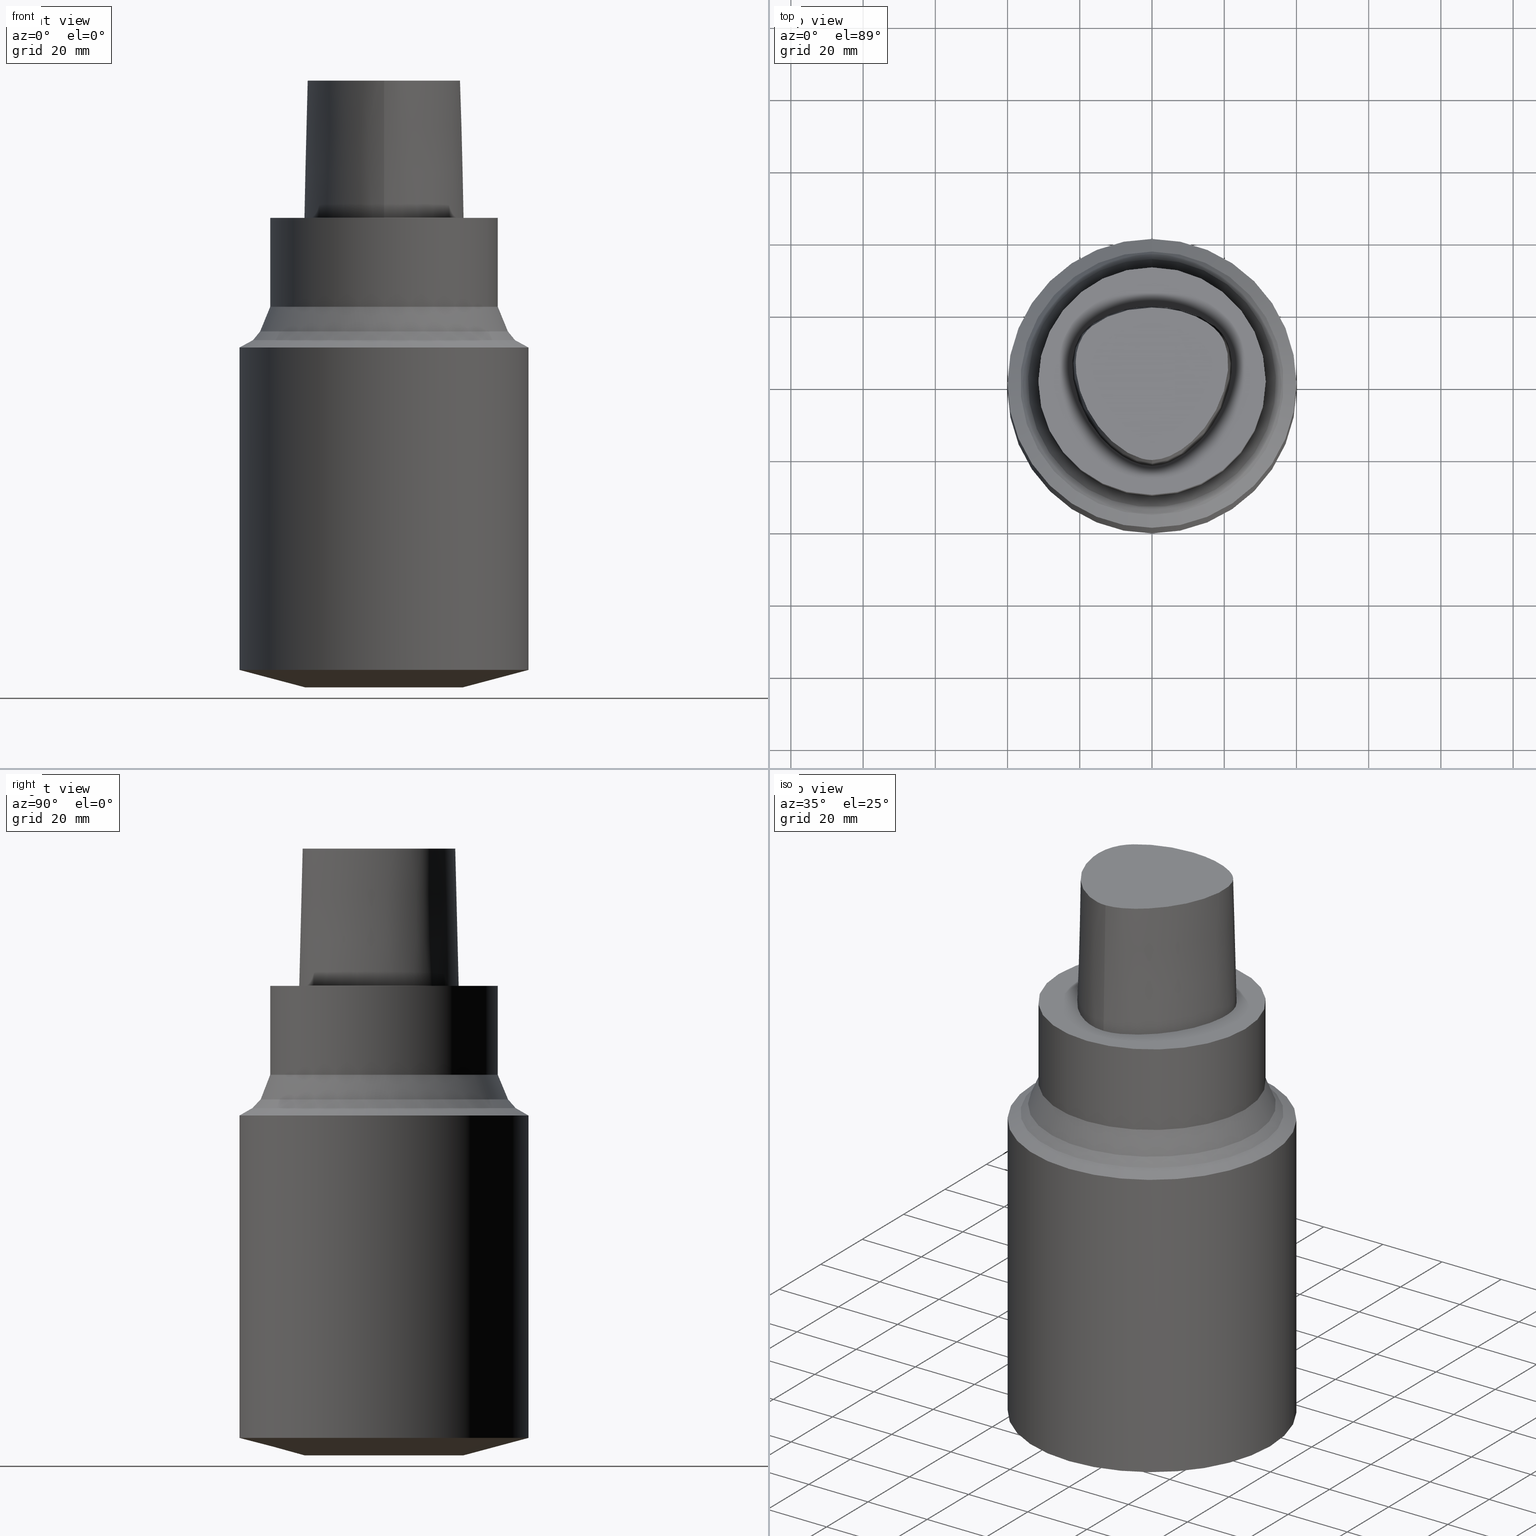
[diagram: canonical four-view strip — front | top / right | iso, engineering-drawing reading convention]
A machine part, canonical four-view strip (front | top / right | iso — engineering-drawing reading convention). The complete STEP part file that produces these views, byte-faithful:
ISO-10303-21;
HEADER;
FILE_DESCRIPTION((''),'1');
FILE_NAME('T:/02_3D_Field-HP\X2\FF71FF6FFF8CFF9F5916\X0\2013/02_Step_Field-HP\X2\FF71FF6FFF8CFF9F5916\X0\2013/91_\X2\65CB524A30C430FC30EB\X0\/01_CAPTO/BSL/C6/C6-BSL40-130.stp','2017-05-01T02:21:08',(''),(''),'Spatial Interop R21 SP3','Kubotek KeyCreator 2011 V10.0.2 (22737)',' ');
FILE_SCHEMA(('automotive_design'));
ENDSEC;
DATA;
#1=MECHANICAL_DESIGN_GEOMETRIC_PRESENTATION_REPRESENTATION(' ',(#10,#11,#12,#13,#14,#15,#16,#17,#18,#19,#20,#21,#22,#23,#24,#25,#26,#27,#28,#29,#30,#31,#32,#33,#34,#35,#36,#37),#6);
#2=PRODUCT_DEFINITION_CONTEXT('',#38,'design');
#3=APPLICATION_PROTOCOL_DEFINITION('INTERNATIONAL STANDARD','automotive_design',1994,#38);
#4=PRODUCT_CATEGORY_RELATIONSHIP('NONE','NONE',#39,#40);
#5=SHAPE_DEFINITION_REPRESENTATION(#41,#42);
#6= (GEOMETRIC_REPRESENTATION_CONTEXT(3)GLOBAL_UNCERTAINTY_ASSIGNED_CONTEXT((#45))GLOBAL_UNIT_ASSIGNED_CONTEXT((#47,#48,#49))REPRESENTATION_CONTEXT('NONE','WORKSPACE'));
#10=STYLED_ITEM('',(#51,#52),#53);
#11=STYLED_ITEM('',(#54,#55),#56);
#12=STYLED_ITEM('',(#57,#58),#59);
#13=STYLED_ITEM('',(#60),#61);
#14=STYLED_ITEM('',(#62),#63);
#15=STYLED_ITEM('',(#64),#65);
#16=STYLED_ITEM('',(#66,#67),#68);
#17=STYLED_ITEM('',(#69),#70);
#18=STYLED_ITEM('',(#71),#72);
#19=STYLED_ITEM('',(#73),#74);
#20=STYLED_ITEM('',(#75),#76);
#21=STYLED_ITEM('',(#77),#78);
#22=STYLED_ITEM('',(#79,#80),#81);
#23=STYLED_ITEM('',(#82),#83);
#24=STYLED_ITEM('',(#84,#85),#86);
#25=STYLED_ITEM('',(#87,#88),#89);
#26=STYLED_ITEM('',(#90),#91);
#27=STYLED_ITEM('',(#92,#93),#94);
#28=STYLED_ITEM('',(#95,#96),#97);
#29=STYLED_ITEM('',(#98),#99);
#30=STYLED_ITEM('',(#100),#101);
#31=STYLED_ITEM('',(#102),#103);
#32=STYLED_ITEM('',(#104,#105),#106);
#33=STYLED_ITEM('',(#107),#108);
#34=STYLED_ITEM('',(#109,#110),#111);
#35=STYLED_ITEM('',(#112,#113),#114);
#36=STYLED_ITEM('',(#115,#116),#117);
#37=STYLED_ITEM('',(#118),#119);
#38=APPLICATION_CONTEXT(' ');
#39=PRODUCT_CATEGORY('part','NONE');
#40=PRODUCT_RELATED_PRODUCT_CATEGORY('detail',' ',(#120));
#41=PRODUCT_DEFINITION_SHAPE('NONE','NONE',#121);
#42=ADVANCED_BREP_SHAPE_REPRESENTATION('Unnamed[1]',(#81,#122),#6);
#45=UNCERTAINTY_MEASURE_WITH_UNIT(LENGTH_MEASURE(1.0E-006),#47,'','');
#47= (CONVERSION_BASED_UNIT('MILLIMETRE',#125)LENGTH_UNIT()NAMED_UNIT(#128));
#48= (NAMED_UNIT(#130)PLANE_ANGLE_UNIT()SI_UNIT($,.RADIAN.));
#49= (NAMED_UNIT(#130)SOLID_ANGLE_UNIT()SI_UNIT($,.STERADIAN.));
#51=PRESENTATION_STYLE_ASSIGNMENT((#136));
#52=PRESENTATION_STYLE_ASSIGNMENT((#137));
#53=ADVANCED_FACE('Unnamed[1]',(#138,#139),#140,.T.);
#54=PRESENTATION_STYLE_ASSIGNMENT((#141));
#55=PRESENTATION_STYLE_ASSIGNMENT((#142));
#56=ADVANCED_FACE('Unnamed[1]',(#143),#144,.T.);
#57=PRESENTATION_STYLE_ASSIGNMENT((#145));
#58=PRESENTATION_STYLE_ASSIGNMENT((#146));
#59=ADVANCED_FACE('Unnamed[1]',(#147,#148),#149,.T.);
#60=PRESENTATION_STYLE_ASSIGNMENT((#150));
#61=EDGE_CURVE('Unnamed[1]',#151,#152,#153,.T.);
#62=PRESENTATION_STYLE_ASSIGNMENT((#154));
#63=EDGE_CURVE('Unnamed[1]',#152,#155,#156,.T.);
#64=PRESENTATION_STYLE_ASSIGNMENT((#157));
#65=EDGE_CURVE('Unnamed[1]',#151,#158,#159,.T.);
#66=PRESENTATION_STYLE_ASSIGNMENT((#160));
#67=PRESENTATION_STYLE_ASSIGNMENT((#161));
#68=ADVANCED_FACE('Unnamed[1]',(#162),#163,.T.);
#69=PRESENTATION_STYLE_ASSIGNMENT((#164));
#70=EDGE_CURVE('Unnamed[1]',#152,#151,#165,.T.);
#71=PRESENTATION_STYLE_ASSIGNMENT((#166));
#72=EDGE_CURVE('Unnamed[1]',#167,#167,#168,.T.);
#73=PRESENTATION_STYLE_ASSIGNMENT((#169));
#74=EDGE_CURVE('Unnamed[1]',#170,#170,#171,.T.);
#75=PRESENTATION_STYLE_ASSIGNMENT((#172));
#76=EDGE_CURVE('Unnamed[1]',#158,#173,#174,.T.);
#77=PRESENTATION_STYLE_ASSIGNMENT((#175));
#78=EDGE_CURVE('Unnamed[1]',#176,#176,#177,.T.);
#79=PRESENTATION_STYLE_ASSIGNMENT((#178));
#80=PRESENTATION_STYLE_ASSIGNMENT((#179));
#81=MANIFOLD_SOLID_BREP('Unnamed[1]',#180);
#82=PRESENTATION_STYLE_ASSIGNMENT((#181));
#83=EDGE_CURVE('Unnamed[1]',#173,#155,#182,.T.);
#84=PRESENTATION_STYLE_ASSIGNMENT((#183));
#85=PRESENTATION_STYLE_ASSIGNMENT((#184));
#86=ADVANCED_FACE('Unnamed[1]',(#185,#186),#187,.T.);
#87=PRESENTATION_STYLE_ASSIGNMENT((#188));
#88=PRESENTATION_STYLE_ASSIGNMENT((#189));
#89=ADVANCED_FACE('Unnamed[1]',(#190,#191),#192,.T.);
#90=PRESENTATION_STYLE_ASSIGNMENT((#193));
#91=EDGE_CURVE('Unnamed[1]',#155,#158,#194,.T.);
#92=PRESENTATION_STYLE_ASSIGNMENT((#195));
#93=PRESENTATION_STYLE_ASSIGNMENT((#196));
#94=ADVANCED_FACE('Unnamed[1]',(#197,#198),#199,.T.);
#95=PRESENTATION_STYLE_ASSIGNMENT((#200));
#96=PRESENTATION_STYLE_ASSIGNMENT((#201));
#97=ADVANCED_FACE('Unnamed[1]',(#202,#203),#204,.T.);
#98=PRESENTATION_STYLE_ASSIGNMENT((#205));
#99=EDGE_CURVE('Unnamed[1]',#206,#206,#207,.T.);
#100=PRESENTATION_STYLE_ASSIGNMENT((#208));
#101=EDGE_CURVE('Unnamed[1]',#209,#209,#210,.T.);
#102=PRESENTATION_STYLE_ASSIGNMENT((#211));
#103=EDGE_CURVE('Unnamed[1]',#212,#212,#213,.T.);
#104=PRESENTATION_STYLE_ASSIGNMENT((#214));
#105=PRESENTATION_STYLE_ASSIGNMENT((#215));
#106=ADVANCED_FACE('Unnamed[1]',(#216),#217,.T.);
#107=PRESENTATION_STYLE_ASSIGNMENT((#218));
#108=EDGE_CURVE('Unnamed[1]',#219,#219,#220,.T.);
#109=PRESENTATION_STYLE_ASSIGNMENT((#221));
#110=PRESENTATION_STYLE_ASSIGNMENT((#222));
#111=ADVANCED_FACE('Unnamed[1]',(#223),#224,.T.);
#112=PRESENTATION_STYLE_ASSIGNMENT((#225));
#113=PRESENTATION_STYLE_ASSIGNMENT((#226));
#114=ADVANCED_FACE('Unnamed[1]',(#227,#228),#229,.T.);
#115=PRESENTATION_STYLE_ASSIGNMENT((#230));
#116=PRESENTATION_STYLE_ASSIGNMENT((#231));
#117=ADVANCED_FACE('Unnamed[1]',(#232),#233,.T.);
#118=PRESENTATION_STYLE_ASSIGNMENT((#234));
#119=EDGE_CURVE('Unnamed[1]',#152,#173,#235,.T.);
#120=PRODUCT('Unnamed[1]','Unnamed[1]','PART-Unnamed[1]-DESC',(#236));
#121=PRODUCT_DEFINITION('NONE','NONE',#237,#2);
#122=AXIS2_PLACEMENT_3D('',#238,#239,#240);
#125=LENGTH_MEASURE_WITH_UNIT(LENGTH_MEASURE(1.0),#241);
#128=DIMENSIONAL_EXPONENTS(1.0,0.0,0.0,0.0,0.0,0.0,0.0);
#130=DIMENSIONAL_EXPONENTS(0.0,0.0,0.0,0.0,0.0,0.0,0.0);
#136=SURFACE_STYLE_USAGE(.BOTH.,#242);
#137=CURVE_STYLE('',#243,POSITIVE_LENGTH_MEASURE(1000.0),#244);
#138=FACE_BOUND('',#245,.T.);
#139=FACE_BOUND('',#246,.T.);
#140=CYLINDRICAL_SURFACE('',#247,40.0);
#141=SURFACE_STYLE_USAGE(.BOTH.,#248);
#142=CURVE_STYLE('',#249,POSITIVE_LENGTH_MEASURE(1000.0),#250);
#143=FACE_OUTER_BOUND('',#251,.T.);
#144=B_SPLINE_SURFACE_WITH_KNOTS('',3,3,((#252,#253,#254,#255),(#256,#257,#258,#259),(#260,#261,#262,#263),(#264,#265,#266,#267),(#268,#269,#270,#271),(#272,#273,#274,#275),(#276,#277,#278,#279),(#280,#281,#282,#283),(#284,#285,#286,#287),(#288,#289,#290,#291),(#292,#293,#294,#295),(#296,#297,#298,#299),(#300,#301,#302,#303),(#304,#305,#306,#307),(#308,#309,#310,#311),(#312,#313,#314,#315),(#316,#317,#318,#319),(#320,#321,#322,#323)),.UNSPECIFIED.,.F.,.F.,.F.,(4,1,1,1,1,1,1,1,1,2,1,1,1,1,4),(4,4),(-6.6151339308743,-6.20168806019465,-5.78824218951501,-5.37479631883537,-4.96135044815572,-4.13445870679644,-3.30756696543715,-2.89412109475751,-2.48067522407786,-2.06722935339822,-1.65378348271857,-1.24033761203893,-0.826891741359287,-0.413445870679644,0.0),(-3.8,0.0),.UNSPECIFIED.);
#145=SURFACE_STYLE_USAGE(.BOTH.,#324);
#146=CURVE_STYLE('',#325,POSITIVE_LENGTH_MEASURE(1000.0),#326);
#147=FACE_BOUND('',#327,.T.);
#148=FACE_BOUND('',#328,.T.);
#149=CONICAL_SURFACE('',#329,38.2327008494253,1.04719755119658);
#150=CURVE_STYLE('',#330,POSITIVE_LENGTH_MEASURE(1000.0),#331);
#151=VERTEX_POINT('',#332);
#152=VERTEX_POINT('',#333);
#153=B_SPLINE_CURVE_WITH_KNOTS('',3,(#334,#335,#336,#337,#338,#339,#340,#341,#342,#343,#344,#345,#346,#347,#348,#349),.UNSPECIFIED.,.F.,.F.,(4,1,1,1,1,1,1,1,1,1,1,1,1,4),(6.61513393087476,6.99917207152274,7.48193246986995,7.96289324787093,8.45540287038584,9.10291653679981,9.67129810936083,10.1618749681153,10.6358867802489,11.1080734988593,11.6043706019633,12.09451993853,12.6985979284494,13.2302678617486),.UNSPECIFIED.);
#154=CURVE_STYLE('',#350,POSITIVE_LENGTH_MEASURE(1000.0),#351);
#155=VERTEX_POINT('',#352);
#156=LINE('',#353,#354);
#157=CURVE_STYLE('',#355,POSITIVE_LENGTH_MEASURE(1000.0),#356);
#158=VERTEX_POINT('',#357);
#159=LINE('',#358,#359);
#160=SURFACE_STYLE_USAGE(.BOTH.,#360);
#161=CURVE_STYLE('',#361,POSITIVE_LENGTH_MEASURE(1000.0),#362);
#162=FACE_OUTER_BOUND('',#363,.T.);
#163=CONICAL_SURFACE('',#364,1.0,0.0249931148600041);
#164=CURVE_STYLE('',#365,POSITIVE_LENGTH_MEASURE(1000.0),#366);
#165=B_SPLINE_CURVE_WITH_KNOTS('',3,(#367,#368,#369,#370,#371,#372,#373,#374,#375,#376,#377,#378,#379,#380,#381,#382),.UNSPECIFIED.,.F.,.F.,(4,1,1,1,1,1,1,1,1,1,1,1,1,4),(0.0,0.447924670568964,0.9388024242536,1.50591409090711,2.07314340012323,2.72424957442464,3.2253501842849,3.80982102049476,4.34867996267067,4.85900173381144,5.37972031856977,6.03459825488646,6.61113557741484,6.61513393087395),.UNSPECIFIED.);
#166=CURVE_STYLE('',#383,POSITIVE_LENGTH_MEASURE(1000.0),#384);
#167=VERTEX_POINT('',#385);
#168=CIRCLE('',#386,31.5);
#169=CURVE_STYLE('',#387,POSITIVE_LENGTH_MEASURE(1000.0),#388);
#170=VERTEX_POINT('',#389);
#171=CIRCLE('',#390,36.4654016988506);
#172=CURVE_STYLE('',#391,POSITIVE_LENGTH_MEASURE(1000.0),#392);
#173=VERTEX_POINT('',#393);
#174=B_SPLINE_CURVE_WITH_KNOTS('',3,(#394,#395,#396,#397,#398,#399,#400,#401,#402,#403,#404,#405,#406,#407,#408,#409,#410,#411),.UNSPECIFIED.,.F.,.F.,(4,1,1,1,1,1,1,1,1,2,1,1,1,1,4),(-6.6151339308743,-6.20168806019465,-5.78824218951501,-5.37479631883537,-4.96135044815572,-4.13445870679644,-3.30756696543715,-2.89412109475751,-2.48067522407786,-2.06722935339822,-1.65378348271857,-1.24033761203893,-0.826891741359287,-0.413445870679644,0.0),.UNSPECIFIED.);
#175=CURVE_STYLE('',#412,POSITIVE_LENGTH_MEASURE(1000.0),#413);
#176=VERTEX_POINT('',#414);
#177=CIRCLE('',#415,31.5);
#178=SURFACE_STYLE_USAGE(.BOTH.,#416);
#179=CURVE_STYLE('',#417,POSITIVE_LENGTH_MEASURE(1000.0),#418);
#180=CLOSED_SHELL('',(#111,#56,#68,#106,#89,#114,#86,#94,#59,#53,#97,#117));
#181=CURVE_STYLE('',#419,POSITIVE_LENGTH_MEASURE(1000.0),#420);
#182=CIRCLE('',#421,0.949936168436318);
#183=SURFACE_STYLE_USAGE(.BOTH.,#422);
#184=CURVE_STYLE('',#423,POSITIVE_LENGTH_MEASURE(1000.0),#424);
#185=FACE_BOUND('',#425,.T.);
#186=FACE_BOUND('',#426,.T.);
#187=CONICAL_SURFACE('',#427,32.924781000876,0.394554409968465);
#188=SURFACE_STYLE_USAGE(.BOTH.,#428);
#189=CURVE_STYLE('',#429,POSITIVE_LENGTH_MEASURE(1000.0),#430);
#190=FACE_BOUND('',#431,.T.);
#191=FACE_OUTER_BOUND('',#432,.T.);
#192=PLANE('',#433);
#193=CURVE_STYLE('',#434,POSITIVE_LENGTH_MEASURE(1000.0),#435);
#194=B_SPLINE_CURVE_WITH_KNOTS('',3,(#436,#437,#438,#439,#440,#441,#442,#443,#444,#445,#446,#447,#448,#449,#450,#451,#452),.UNSPECIFIED.,.F.,.F.,(4,1,1,1,1,1,1,1,1,1,1,1,1,1,4),(-13.2302678617486,-12.816821991069,-12.4033761203893,-11.9899302497097,-11.57648437903,-11.1630385083504,-10.9563155730106,-10.7495926376707,-10.3361467669911,-9.92270089631145,-9.09580915495216,-8.26891741359287,-7.44202567223358,-7.02857980155394,-6.6151339308743),.UNSPECIFIED.);
#195=SURFACE_STYLE_USAGE(.BOTH.,#453);
#196=CURVE_STYLE('',#454,POSITIVE_LENGTH_MEASURE(1000.0),#455);
#197=FACE_BOUND('',#456,.T.);
#198=FACE_BOUND('',#457,.T.);
#199=CONICAL_SURFACE('',#458,35.4074818503013,0.720875980582513);
#200=SURFACE_STYLE_USAGE(.BOTH.,#459);
#201=CURVE_STYLE('',#460,POSITIVE_LENGTH_MEASURE(1000.0),#461);
#202=FACE_BOUND('',#462,.T.);
#203=FACE_BOUND('',#463,.T.);
#204=CONICAL_SURFACE('',#464,31.0000000009896,1.30899693880113);
#205=CURVE_STYLE('',#465,POSITIVE_LENGTH_MEASURE(1000.0),#466);
#206=VERTEX_POINT('',#467);
#207=CIRCLE('',#468,34.349562001752);
#208=CURVE_STYLE('',#469,POSITIVE_LENGTH_MEASURE(1000.0),#470);
#209=VERTEX_POINT('',#471);
#210=CIRCLE('',#472,40.0);
#211=CURVE_STYLE('',#473,POSITIVE_LENGTH_MEASURE(1000.0),#474);
#212=VERTEX_POINT('',#475);
#213=CIRCLE('',#476,22.0000000019793);
#214=SURFACE_STYLE_USAGE(.BOTH.,#477);
#215=CURVE_STYLE('',#478,POSITIVE_LENGTH_MEASURE(1000.0),#479);
#216=FACE_OUTER_BOUND('',#480,.T.);
#217=PLANE('',#481);
#218=CURVE_STYLE('',#482,POSITIVE_LENGTH_MEASURE(1000.0),#483);
#219=VERTEX_POINT('',#484);
#220=CIRCLE('',#485,40.0);
#221=SURFACE_STYLE_USAGE(.BOTH.,#486);
#222=CURVE_STYLE('',#487,POSITIVE_LENGTH_MEASURE(1000.0),#488);
#223=FACE_OUTER_BOUND('',#489,.T.);
#224=B_SPLINE_SURFACE_WITH_KNOTS('',3,3,((#490,#491,#492,#493),(#494,#495,#496,#497),(#498,#499,#500,#501),(#502,#503,#504,#505),(#506,#507,#508,#509),(#510,#511,#512,#513),(#514,#515,#516,#517),(#518,#519,#520,#521),(#522,#523,#524,#525),(#526,#527,#528,#529),(#530,#531,#532,#533),(#534,#535,#536,#537),(#538,#539,#540,#541),(#542,#543,#544,#545),(#546,#547,#548,#549),(#550,#551,#552,#553),(#554,#555,#556,#557)),.UNSPECIFIED.,.F.,.F.,.F.,(4,1,1,1,1,1,1,1,1,1,1,1,1,1,4),(4,4),(-13.2302678617486,-12.816821991069,-12.4033761203893,-11.9899302497097,-11.57648437903,-11.1630385083504,-10.9563155730106,-10.7495926376707,-10.3361467669911,-9.92270089631145,-9.09580915495216,-8.26891741359287,-7.44202567223358,-7.02857980155394,-6.6151339308743),(-3.8,0.0),.UNSPECIFIED.);
#225=SURFACE_STYLE_USAGE(.BOTH.,#558);
#226=CURVE_STYLE('',#559,POSITIVE_LENGTH_MEASURE(1000.0),#560);
#227=FACE_BOUND('',#561,.T.);
#228=FACE_BOUND('',#562,.T.);
#229=CYLINDRICAL_SURFACE('',#563,31.5);
#230=SURFACE_STYLE_USAGE(.BOTH.,#564);
#231=CURVE_STYLE('',#565,POSITIVE_LENGTH_MEASURE(1000.0),#566);
#232=FACE_OUTER_BOUND('',#567,.T.);
#233=PLANE('',#568);
#234=CURVE_STYLE('',#569,POSITIVE_LENGTH_MEASURE(1000.0),#570);
#235=LINE('',#571,#572);
#236=PRODUCT_CONTEXT('',#38,'mechanical');
#237=PRODUCT_DEFINITION_FORMATION_WITH_SPECIFIED_SOURCE(' ','NONE',#120,.NOT_KNOWN.);
#238=CARTESIAN_POINT('',(0.0,0.0,0.0));
#239=DIRECTION('',(0.0,0.0,1.0));
#240=DIRECTION('',(1.0,0.0,0.0));
#241= (NAMED_UNIT(#128)LENGTH_UNIT()SI_UNIT(.MILLI.,.METRE.));
#242=SURFACE_SIDE_STYLE('',(#574));
#243=DRAUGHTING_PRE_DEFINED_CURVE_FONT('continuous');
#244=COLOUR_RGB('',0.0,1.0,0.0);
#245=EDGE_LOOP('',(#575));
#246=EDGE_LOOP('',(#576));
#247=AXIS2_PLACEMENT_3D('',#577,#578,#579);
#248=SURFACE_SIDE_STYLE('',(#580));
#249=DRAUGHTING_PRE_DEFINED_CURVE_FONT('continuous');
#250=COLOUR_RGB('',0.0,1.0,0.0);
#251=EDGE_LOOP('',(#581,#582,#583,#584));
#252=CARTESIAN_POINT('',(0.038736923393866,-22.5191997536361,38.0));
#253=CARTESIAN_POINT('',(0.04035580478973,-22.8358410047159,25.3333333333066));
#254=CARTESIAN_POINT('',(0.041974686185626,-23.1524822558133,12.6666666666934));
#255=CARTESIAN_POINT('',(0.04359356758149,-23.4691235068931,7.78075697532443E-032));
#256=CARTESIAN_POINT('',(-1.33786123484754,-22.5261650259856,38.0));
#257=CARTESIAN_POINT('',(-1.38240731367927,-22.8430399310626,25.3333333333066));
#258=CARTESIAN_POINT('',(-1.42695339249092,-23.1599147815484,12.6666666666934));
#259=CARTESIAN_POINT('',(-1.4714994713963,-23.4767895315797,2.46519032881566E-032));
#260=CARTESIAN_POINT('',(-4.08909358431842,-21.9268839879558,38.0));
#261=CARTESIAN_POINT('',(-4.20580731135515,-22.2249725500078,25.3333333333066));
#262=CARTESIAN_POINT('',(-4.32252104640446,-22.5230611651922,12.6666666666934));
#263=CARTESIAN_POINT('',(-4.43923476371401,-22.821149804767,-4.93038065763132E-032));
#264=CARTESIAN_POINT('',(-7.8333083619947,-19.9973514861616,38.0));
#265=CARTESIAN_POINT('',(-8.00568301809614,-20.2649260859405,25.3333333333066));
#266=CARTESIAN_POINT('',(-8.1780576640789,-20.532500564315,12.6666666666934));
#267=CARTESIAN_POINT('',(-8.35043230079961,-20.8000751253325,-9.86076131526265E-032));
#268=CARTESIAN_POINT('',(-11.1035071147626,-17.450554957873,38.0));
#269=CARTESIAN_POINT('',(-11.3173048160562,-17.6855739222454,25.3333333333066));
#270=CARTESIAN_POINT('',(-11.5311025116181,-17.9205928617968,12.6666666666934));
#271=CARTESIAN_POINT('',(-11.744900222602,-18.1556117874078,-1.97215226305253E-031));
#272=CARTESIAN_POINT('',(-14.9379535189057,-13.461132049697,38.0));
#273=CARTESIAN_POINT('',(-15.191622410671,-13.6542981711372,25.3333333333066));
#274=CARTESIAN_POINT('',(-15.4452913389853,-13.8474645327131,12.6666666666934));
#275=CARTESIAN_POINT('',(-15.6989602501314,-14.0406306929147,-1.97215226305253E-031));
#276=CARTESIAN_POINT('',(-18.6681263017223,-7.59391757463204,38.0));
#277=CARTESIAN_POINT('',(-18.9571800800711,-7.73136168081928,25.3333333333066));
#278=CARTESIAN_POINT('',(-19.2462337287194,-7.86880572399774,12.6666666666934));
#279=CARTESIAN_POINT('',(-19.5352875070682,-8.00624990770787,1.97215226305253E-031));
#280=CARTESIAN_POINT('',(-20.7857899858339,-0.952862819790525,38.0));
#281=CARTESIAN_POINT('',(-21.0973808305434,-1.02218087467418,25.3333333333066));
#282=CARTESIAN_POINT('',(-21.408971677436,-1.09149899580772,12.6666666666934));
#283=CARTESIAN_POINT('',(-21.7205626190491,-1.16081708945282,0.0));
#284=CARTESIAN_POINT('',(-21.2911760556836,4.5469215763113,38.0));
#285=CARTESIAN_POINT('',(-21.610337904926,4.54783292082248,25.3333333333066));
#286=CARTESIAN_POINT('',(-21.9294998290918,4.54874426225691,12.6666666666934));
#287=CARTESIAN_POINT('',(-22.2486616783342,4.54965558738736,0.0));
#288=CARTESIAN_POINT('',(-20.7345309521958,8.74909381391006,38.0));
#289=CARTESIAN_POINT('',(-21.0445680426217,8.83349432450556,25.3333333333066));
#290=CARTESIAN_POINT('',(-21.3546050933631,8.91789488065068,12.6666666666934));
#291=CARTESIAN_POINT('',(-21.6646421256468,9.00229539124618,0.0));
#292=CARTESIAN_POINT('',(-19.5531512296439,11.3174844040833,38.0));
#293=CARTESIAN_POINT('',(-19.8336219699984,11.4710077674213,25.3333333333066));
#294=CARTESIAN_POINT('',(-20.1140927680763,11.6245311337623,12.6666666666934));
#295=CARTESIAN_POINT('',(-20.3945635471922,11.7780544971003,0.0));
#296=CARTESIAN_POINT('',(-17.9100913688793,13.524027510437,38.0));
#297=CARTESIAN_POINT('',(-18.1375785458768,13.7487051053655,25.3333333333066));
#298=CARTESIAN_POINT('',(-18.365065665211,13.9733826973296,12.6666666666934));
#299=CARTESIAN_POINT('',(-18.5925528034471,14.1980602922581,0.0));
#300=CARTESIAN_POINT('',(-15.7996349656398,15.3762170634413,38.0));
#301=CARTESIAN_POINT('',(-15.9739761051783,15.6434029846179,25.3333333333066));
#302=CARTESIAN_POINT('',(-16.1483172726872,15.9105889315134,12.6666666666934));
#303=CARTESIAN_POINT('',(-16.3226584122258,16.1777748720707,0.0));
#304=CARTESIAN_POINT('',(-12.1175640002064,17.3825162484012,38.0));
#305=CARTESIAN_POINT('',(-12.2475895903055,17.6724842099619,25.3333333333066));
#306=CARTESIAN_POINT('',(-12.3776152070492,17.9624521925696,12.6666666666934));
#307=CARTESIAN_POINT('',(-12.5076407874579,18.2524201541303,9.86076131526265E-032));
#308=CARTESIAN_POINT('',(-8.21761151654222,18.7588585989994,38.0));
#309=CARTESIAN_POINT('',(-8.30099497910627,19.0656105427881,25.3333333333066));
#310=CARTESIAN_POINT('',(-8.38437843913309,19.3723624535439,12.6666666666934));
#311=CARTESIAN_POINT('',(-8.46776192107786,19.679114377952,9.86076131526265E-032));
#312=CARTESIAN_POINT('',(-4.13466093881225,19.5396850837055,38.0));
#313=CARTESIAN_POINT('',(-4.16658562115465,19.8557172636973,25.3333333333066));
#314=CARTESIAN_POINT('',(-4.19851029939059,20.1717494367229,12.6666666666934));
#315=CARTESIAN_POINT('',(-4.23043497193604,20.487781597334,1.97215226305253E-031));
#316=CARTESIAN_POINT('',(-1.37917220403684,19.6638560588908,38.0));
#317=CARTESIAN_POINT('',(-1.39382511685176,19.98016223565,25.3333333333066));
#318=CARTESIAN_POINT('',(-1.40847802945569,20.296468399885,12.6666666666934));
#319=CARTESIAN_POINT('',(-1.42313094248379,20.6127745766442,1.10933564796705E-031));
#320=CARTESIAN_POINT('',(-0.001218547003662,19.7276821925089,38.0));
#321=CARTESIAN_POINT('',(-0.015869696232855,20.043988446791,25.3333333333066));
#322=CARTESIAN_POINT('',(-0.030520845462092,20.3602947010464,12.6666666666934));
#323=CARTESIAN_POINT('',(-0.045171994691285,20.6766009553285,1.6755590516169E-031));
#324=SURFACE_SIDE_STYLE('',(#585));
#325=DRAUGHTING_PRE_DEFINED_CURVE_FONT('continuous');
#326=COLOUR_RGB('',0.0,1.0,0.0);
#327=EDGE_LOOP('',(#586));
#328=EDGE_LOOP('',(#587));
#329=AXIS2_PLACEMENT_3D('',#588,#589,#590);
#330=DRAUGHTING_PRE_DEFINED_CURVE_FONT('continuous');
#331=COLOUR_RGB('',0.0,1.0,0.0);
#332=CARTESIAN_POINT('',(0.038736923393866,-22.5191997536361,38.0));
#333=CARTESIAN_POINT('',(-0.001218547003662,19.7276821925089,38.0));
#334=CARTESIAN_POINT('',(0.038736923394311,-22.519199753636,38.0));
#335=CARTESIAN_POINT('',(1.31742058183662,-22.512662269405,38.0));
#336=CARTESIAN_POINT('',(4.2093773447498,-21.9116226439989,38.0));
#337=CARTESIAN_POINT('',(8.20895504542113,-19.7798683845067,38.0));
#338=CARTESIAN_POINT('',(11.9784633234593,-16.681663904162,38.0));
#339=CARTESIAN_POINT('',(15.5308821579362,-12.5807487594113,38.0));
#340=CARTESIAN_POINT('',(18.4566248438667,-7.64932246015528,38.0));
#341=CARTESIAN_POINT('',(20.4036090752029,-2.27012499825289,38.0));
#342=CARTESIAN_POINT('',(21.2357187429189,2.79891401173156,38.0));
#343=CARTESIAN_POINT('',(21.0811206267748,7.62543090736657,38.0));
#344=CARTESIAN_POINT('',(19.3383577336563,12.2772250726194,38.0));
#345=CARTESIAN_POINT('',(15.5796322014404,15.5799672120682,38.0));
#346=CARTESIAN_POINT('',(10.8392956074438,17.9834601687347,38.0));
#347=CARTESIAN_POINT('',(5.56068045850571,19.4586143858472,38.0));
#348=CARTESIAN_POINT('',(1.77223893711014,19.6418877095654,38.0));
#349=CARTESIAN_POINT('',(-0.001218367817519,19.7276822012873,38.0));
#350=DRAUGHTING_PRE_DEFINED_CURVE_FONT('continuous');
#351=COLOUR_RGB('',0.0,1.0,0.0);
#352=CARTESIAN_POINT('',(0.044682985379347,20.6765087343109,1.61778115328528E-031));
#353=CARTESIAN_POINT('',(-0.001218547003662,19.7276821925089,38.0));
#354=VECTOR('',#591,38.0118715503078);
#355=DRAUGHTING_PRE_DEFINED_CURVE_FONT('continuous');
#356=COLOUR_RGB('',0.0,1.0,0.0);
#357=CARTESIAN_POINT('',(0.04359356758149,-23.4691235068931,7.78075697532443E-032));
#358=CARTESIAN_POINT('',(0.038736923393866,-22.5191997536361,38.0));
#359=VECTOR('',#592,38.0118715498723);
#360=SURFACE_SIDE_STYLE('',(#593));
#361=DRAUGHTING_PRE_DEFINED_CURVE_FONT('continuous');
#362=COLOUR_RGB('',0.0,1.0,0.0);
#363=EDGE_LOOP('',(#594,#595,#596));
#364=AXIS2_PLACEMENT_3D('',#597,#598,#599);
#365=DRAUGHTING_PRE_DEFINED_CURVE_FONT('continuous');
#366=COLOUR_RGB('',0.0,1.0,0.0);
#367=CARTESIAN_POINT('',(-0.001218547003662,19.7276821925089,38.0));
#368=CARTESIAN_POINT('',(-1.49408492138443,19.6585333605309,38.0));
#369=CARTESIAN_POINT('',(-4.62297391420352,19.513604770166,38.0));
#370=CARTESIAN_POINT('',(-9.56160616752212,18.4291575730197,38.0));
#371=CARTESIAN_POINT('',(-14.5427684976927,16.2697452580488,38.0));
#372=CARTESIAN_POINT('',(-19.4315563551602,12.5302108980807,38.0));
#373=CARTESIAN_POINT('',(-21.306358833612,6.76352894547076,38.0));
#374=CARTESIAN_POINT('',(-21.0724946936277,0.957075236984038,38.0));
#375=CARTESIAN_POINT('',(-19.7876470880144,-4.34628503581652,38.0));
#376=CARTESIAN_POINT('',(-17.5396999600095,-9.33314444653089,38.0));
#377=CARTESIAN_POINT('',(-14.645447733857,-13.7185760345629,38.0));
#378=CARTESIAN_POINT('',(-10.7996726536643,-17.856257282137,38.0));
#379=CARTESIAN_POINT('',(-6.00479510196376,-21.2687382067675,38.0));
#380=CARTESIAN_POINT('',(-1.90747171908525,-22.5250621415864,38.0));
#381=CARTESIAN_POINT('',(0.025424107066464,-22.5192678176378,38.0));
#382=CARTESIAN_POINT('',(0.038736923394311,-22.519199753636,38.0));
#383=DRAUGHTING_PRE_DEFINED_CURVE_FONT('continuous');
#384=COLOUR_RGB('',0.0,1.0,0.0);
#385=CARTESIAN_POINT('',(1.50597243309276E-015,31.5,-24.5943962641518));
#386=AXIS2_PLACEMENT_3D('',#600,#601,#602);
#387=DRAUGHTING_PRE_DEFINED_CURVE_FONT('continuous');
#388=COLOUR_RGB('',0.0,1.0,0.0);
#389=CARTESIAN_POINT('',(2.07247284381275E-015,36.4654016988506,-33.8460500653035));
#390=AXIS2_PLACEMENT_3D('',#603,#604,#605);
#391=DRAUGHTING_PRE_DEFINED_CURVE_FONT('continuous');
#392=COLOUR_RGB('',0.0,1.0,0.0);
#393=CARTESIAN_POINT('',(-0.045171994691285,20.6766009553285,1.6755590516169E-031));
#394=CARTESIAN_POINT('',(0.04359356758149,-23.4691235068931,7.78075697532443E-032));
#395=CARTESIAN_POINT('',(-1.4714994713963,-23.4767895315797,2.46519032881566E-032));
#396=CARTESIAN_POINT('',(-4.43923476371401,-22.821149804767,-4.93038065763132E-032));
#397=CARTESIAN_POINT('',(-8.35043230079961,-20.8000751253325,-9.86076131526265E-032));
#398=CARTESIAN_POINT('',(-11.744900222602,-18.1556117874078,-1.97215226305253E-031));
#399=CARTESIAN_POINT('',(-15.6989602501314,-14.0406306929147,-1.97215226305253E-031));
#400=CARTESIAN_POINT('',(-19.5352875070682,-8.00624990770787,1.97215226305253E-031));
#401=CARTESIAN_POINT('',(-21.7205626190491,-1.16081708945282,0.0));
#402=CARTESIAN_POINT('',(-22.2486616783342,4.54965558738736,0.0));
#403=CARTESIAN_POINT('',(-21.6646421256468,9.00229539124618,0.0));
#404=CARTESIAN_POINT('',(-20.3945635471922,11.7780544971003,0.0));
#405=CARTESIAN_POINT('',(-18.5925528034471,14.1980602922581,0.0));
#406=CARTESIAN_POINT('',(-16.3226584122258,16.1777748720707,0.0));
#407=CARTESIAN_POINT('',(-12.5076407874579,18.2524201541303,9.86076131526265E-032));
#408=CARTESIAN_POINT('',(-8.46776192107786,19.679114377952,9.86076131526265E-032));
#409=CARTESIAN_POINT('',(-4.23043497193604,20.487781597334,1.97215226305253E-031));
#410=CARTESIAN_POINT('',(-1.42313094248379,20.6127745766442,1.10933564796705E-031));
#411=CARTESIAN_POINT('',(-0.045171994691285,20.6766009553285,1.6755590516169E-031));
#412=DRAUGHTING_PRE_DEFINED_CURVE_FONT('continuous');
#413=COLOUR_RGB('',0.0,1.0,0.0);
#414=CARTESIAN_POINT('',(-3.88267476788467E-031,31.5,3.85763741731416E-015));
#415=AXIS2_PLACEMENT_3D('',#606,#607,#608);
#416=SURFACE_SIDE_STYLE('',(#609));
#417=DRAUGHTING_PRE_DEFINED_CURVE_FONT('continuous');
#418=COLOUR_RGB('',0.0,1.0,0.0);
#419=DRAUGHTING_PRE_DEFINED_CURVE_FONT('continuous');
#420=COLOUR_RGB('',0.0,1.0,0.0);
#421=AXIS2_PLACEMENT_3D('',#610,#611,#612);
#422=SURFACE_SIDE_STYLE('',(#613));
#423=DRAUGHTING_PRE_DEFINED_CURVE_FONT('continuous');
#424=COLOUR_RGB('',0.0,1.0,0.0);
#425=EDGE_LOOP('',(#614));
#426=EDGE_LOOP('',(#615));
#427=AXIS2_PLACEMENT_3D('',#616,#617,#618);
#428=SURFACE_SIDE_STYLE('',(#619));
#429=DRAUGHTING_PRE_DEFINED_CURVE_FONT('continuous');
#430=COLOUR_RGB('',0.0,1.0,0.0);
#431=EDGE_LOOP('',(#620,#621,#622));
#432=EDGE_LOOP('',(#623));
#433=AXIS2_PLACEMENT_3D('',#624,#625,#626);
#434=DRAUGHTING_PRE_DEFINED_CURVE_FONT('continuous');
#435=COLOUR_RGB('',0.0,1.0,0.0);
#436=CARTESIAN_POINT('',(0.044682985379347,20.6765087343109,1.61778115328528E-031));
#437=CARTESIAN_POINT('',(1.42379272427753,20.6097915814392,8.62816615085482E-032));
#438=CARTESIAN_POINT('',(4.2230955003445,20.4837538303966,1.4791141972894E-031));
#439=CARTESIAN_POINT('',(8.47220762821777,19.6890432607088,9.86076131526265E-032));
#440=CARTESIAN_POINT('',(12.5141247708253,18.2434968480404,0.0));
#441=CARTESIAN_POINT('',(16.3038624872874,16.1734192182143,1.97215226305253E-031));
#442=CARTESIAN_POINT('',(19.1446913988473,13.7036723639434,-1.97215226305253E-031));
#443=CARTESIAN_POINT('',(20.7319894342149,11.1014620996188,0.0));
#444=CARTESIAN_POINT('',(21.7831756505763,8.28099229708081,-1.97215226305253E-031));
#445=CARTESIAN_POINT('',(22.2258240701438,4.60865440596506,0.0));
#446=CARTESIAN_POINT('',(21.7436130080666,-1.11326526354485,0.0));
#447=CARTESIAN_POINT('',(19.5519487660502,-7.95432366164584,0.0));
#448=CARTESIAN_POINT('',(14.9574167123838,-15.2089785567293,0.0));
#449=CARTESIAN_POINT('',(9.66840283021945,-20.0827414369705,-9.86076131526265E-032));
#450=CARTESIAN_POINT('',(4.51628650521788,-22.7946374572188,-9.86076131526265E-032));
#451=CARTESIAN_POINT('',(1.55867251738073,-23.4612972770043,-1.23259516440783E-032));
#452=CARTESIAN_POINT('',(0.04359356758149,-23.4691235068931,7.78075697532443E-032));
#453=SURFACE_SIDE_STYLE('',(#627));
#454=DRAUGHTING_PRE_DEFINED_CURVE_FONT('continuous');
#455=COLOUR_RGB('',0.0,1.0,0.0);
#456=EDGE_LOOP('',(#628));
#457=EDGE_LOOP('',(#629));
#458=AXIS2_PLACEMENT_3D('',#630,#631,#632);
#459=SURFACE_SIDE_STYLE('',(#633));
#460=DRAUGHTING_PRE_DEFINED_CURVE_FONT('continuous');
#461=COLOUR_RGB('',0.0,1.0,0.0);
#462=EDGE_LOOP('',(#634));
#463=EDGE_LOOP('',(#635));
#464=AXIS2_PLACEMENT_3D('',#636,#637,#638);
#465=DRAUGHTING_PRE_DEFINED_CURVE_FONT('continuous');
#466=COLOUR_RGB('',0.0,1.0,0.0);
#467=CARTESIAN_POINT('',(1.9250166340247E-015,34.349562001752,-31.4379074091399));
#468=AXIS2_PLACEMENT_3D('',#639,#640,#641);
#469=DRAUGHTING_PRE_DEFINED_CURVE_FONT('continuous');
#470=COLOUR_RGB('',0.0,1.0,0.0);
#471=CARTESIAN_POINT('',(7.66487538549997E-015,40.0,-125.176914533016));
#472=AXIS2_PLACEMENT_3D('',#642,#643,#644);
#473=DRAUGHTING_PRE_DEFINED_CURVE_FONT('continuous');
#474=COLOUR_RGB('',0.0,1.0,0.0);
#475=CARTESIAN_POINT('',(7.9602041944578E-015,22.0000000019793,-130.0));
#476=AXIS2_PLACEMENT_3D('',#645,#646,#647);
#477=SURFACE_SIDE_STYLE('',(#648));
#478=DRAUGHTING_PRE_DEFINED_CURVE_FONT('continuous');
#479=COLOUR_RGB('',0.0,1.0,0.0);
#480=EDGE_LOOP('',(#649,#650));
#481=AXIS2_PLACEMENT_3D('',#651,#652,#653);
#482=DRAUGHTING_PRE_DEFINED_CURVE_FONT('continuous');
#483=COLOUR_RGB('',0.0,1.0,0.0);
#484=CARTESIAN_POINT('',(2.19742975838069E-015,40.0,-35.8867513459494));
#485=AXIS2_PLACEMENT_3D('',#654,#655,#656);
#486=SURFACE_SIDE_STYLE('',(#657));
#487=DRAUGHTING_PRE_DEFINED_CURVE_FONT('continuous');
#488=COLOUR_RGB('',0.0,1.0,0.0);
#489=EDGE_LOOP('',(#658,#659,#660,#661));
#490=CARTESIAN_POINT('',(-0.001218367817519,19.7276822012873,38.0));
#491=CARTESIAN_POINT('',(0.014082083248157,20.0439577123075,25.3333333333066));
#492=CARTESIAN_POINT('',(0.029382534313671,20.3602332232908,12.6666666666934));
#493=CARTESIAN_POINT('',(0.044682985379347,20.6765087343109,1.61778115328528E-031));
#494=CARTESIAN_POINT('',(1.37788651195108,19.6609652834875,38.0));
#495=CARTESIAN_POINT('',(1.3931885827258,19.9772407169847,25.3333333333066));
#496=CARTESIAN_POINT('',(1.40849065356095,20.2935162254648,12.6666666666934));
#497=CARTESIAN_POINT('',(1.42379272427753,20.6097915814392,8.62816615085482E-032));
#498=CARTESIAN_POINT('',(4.135446440878,19.5347778787784,38.0));
#499=CARTESIAN_POINT('',(4.16466278851883,19.8511031866125,25.3333333333066));
#500=CARTESIAN_POINT('',(4.1938791526746,20.1674284644204,12.6666666666934));
#501=CARTESIAN_POINT('',(4.2230955003445,20.4837538303966,1.4791141972894E-031));
#502=CARTESIAN_POINT('',(8.213607363795,18.7706026638736,38.0));
#503=CARTESIAN_POINT('',(8.29980745008421,19.0767495109635,25.3333333333066));
#504=CARTESIAN_POINT('',(8.38600751285747,19.3828964329996,12.6666666666934));
#505=CARTESIAN_POINT('',(8.47220762821777,19.6890432607088,9.86076131526265E-032));
#506=CARTESIAN_POINT('',(12.1316338645671,17.3698624840857,38.0));
#507=CARTESIAN_POINT('',(12.2591308270381,17.6610739397708,25.3333333333066));
#508=CARTESIAN_POINT('',(12.3866278083543,17.9522853923553,12.6666666666934));
#509=CARTESIAN_POINT('',(12.5141247708253,18.2434968480404,0.0));
#510=CARTESIAN_POINT('',(15.7706546153679,15.3789501349612,38.0));
#511=CARTESIAN_POINT('',(15.9483905900895,15.6437731794811,25.3333333333066));
#512=CARTESIAN_POINT('',(16.1261265513272,15.9085961736944,12.6666666666934));
#513=CARTESIAN_POINT('',(16.3038624872874,16.1734192182143,1.97215226305253E-031));
#514=CARTESIAN_POINT('',(18.4265894256284,13.0570022172893,38.0));
#515=CARTESIAN_POINT('',(18.6659567517146,13.2725589420689,25.3333333333066));
#516=CARTESIAN_POINT('',(18.9053240921419,13.4881156488541,12.6666666666934));
#517=CARTESIAN_POINT('',(19.1446913988473,13.7036723639434,-1.97215226305253E-031));
#518=CARTESIAN_POINT('',(19.8679958653038,10.6923771981998,38.0));
#519=CARTESIAN_POINT('',(20.1559937048299,10.8287388264873,25.3333333333066));
#520=CARTESIAN_POINT('',(20.4439915656177,10.965100461641,12.6666666666934));
#521=CARTESIAN_POINT('',(20.7319894342149,11.1014620996188,0.0));
#522=CARTESIAN_POINT('',(20.8470867582337,8.07149548576131,38.0));
#523=CARTESIAN_POINT('',(21.1591164072431,8.14132775555392,25.3333333333066));
#524=CARTESIAN_POINT('',(21.4711459821861,8.21116003697855,12.6666666666934));
#525=CARTESIAN_POINT('',(21.7831756505763,8.28099229708081,-1.97215226305253E-031));
#526=CARTESIAN_POINT('',(21.2693244256982,4.61157245650171,38.0));
#527=CARTESIAN_POINT('',(21.5881576801997,4.6105997689982,25.3333333333066));
#528=CARTESIAN_POINT('',(21.9069908544037,4.60962709346857,12.6666666666934));
#529=CARTESIAN_POINT('',(22.2258240701438,4.60865440596506,0.0));
#530=CARTESIAN_POINT('',(20.8071610855575,-0.912828649855193,38.0));
#531=CARTESIAN_POINT('',(21.119311671178,-0.979640884839481,25.3333333333066));
#532=CARTESIAN_POINT('',(21.4314624224461,-1.04645306732201,12.6666666666934));
#533=CARTESIAN_POINT('',(21.7436130080666,-1.11326526354485,0.0));
#534=CARTESIAN_POINT('',(18.6841935581315,-7.54428794252837,38.0));
#535=CARTESIAN_POINT('',(18.9734452551861,-7.6809665891091,25.3333333333066));
#536=CARTESIAN_POINT('',(19.2626970689956,-7.81764505382656,12.6666666666934));
#537=CARTESIAN_POINT('',(19.5519487660502,-7.95432366164584,0.0));
#538=CARTESIAN_POINT('',(14.2175552814,-14.5971504342323,38.0));
#539=CARTESIAN_POINT('',(14.4641757465198,-14.8010930946929,25.3333333333066));
#540=CARTESIAN_POINT('',(14.710796247264,-15.0050359737917,12.6666666666934));
#541=CARTESIAN_POINT('',(14.9574167123838,-15.2089785567293,0.0));
#542=CARTESIAN_POINT('',(9.0844808732933,-19.3179298129689,38.0));
#543=CARTESIAN_POINT('',(9.27912152349017,-19.572866915557,25.3333333333066));
#544=CARTESIAN_POINT('',(9.47376218971294,-19.827804295621,12.6666666666934));
#545=CARTESIAN_POINT('',(9.66840283021945,-20.0827414369705,-9.86076131526265E-032));
#546=CARTESIAN_POINT('',(4.17112919194182,-21.8987568152736,38.0));
#547=CARTESIAN_POINT('',(4.28618163483998,-22.1973837173649,25.3333333333066));
#548=CARTESIAN_POINT('',(4.40123406239433,-22.4960105163661,12.6666666666934));
#549=CARTESIAN_POINT('',(4.51628650521788,-22.7946374572188,-9.86076131526265E-032));
#550=CARTESIAN_POINT('',(1.41533654381097,-22.5120888467812,38.0));
#551=CARTESIAN_POINT('',(1.46311520162011,-22.8284916374445,25.3333333333066));
#552=CARTESIAN_POINT('',(1.51089385942236,-23.144894486341,12.6666666666934));
#553=CARTESIAN_POINT('',(1.55867251738073,-23.4612972770043,-1.23259516440783E-032));
#554=CARTESIAN_POINT('',(0.038736923393866,-22.5191997536361,38.0));
#555=CARTESIAN_POINT('',(0.04035580478973,-22.8358410047159,25.3333333333066));
#556=CARTESIAN_POINT('',(0.041974686185626,-23.1524822558133,12.6666666666934));
#557=CARTESIAN_POINT('',(0.04359356758149,-23.4691235068931,7.78075697532443E-032));
#558=SURFACE_SIDE_STYLE('',(#662));
#559=DRAUGHTING_PRE_DEFINED_CURVE_FONT('continuous');
#560=COLOUR_RGB('',0.0,1.0,0.0);
#561=EDGE_LOOP('',(#663));
#562=EDGE_LOOP('',(#664));
#563=AXIS2_PLACEMENT_3D('',#665,#666,#667);
#564=SURFACE_SIDE_STYLE('',(#668));
#565=DRAUGHTING_PRE_DEFINED_CURVE_FONT('continuous');
#566=COLOUR_RGB('',0.0,1.0,0.0);
#567=EDGE_LOOP('',(#669));
#568=AXIS2_PLACEMENT_3D('',#670,#671,#672);
#569=DRAUGHTING_PRE_DEFINED_CURVE_FONT('continuous');
#570=COLOUR_RGB('',0.0,1.0,0.0);
#571=CARTESIAN_POINT('',(-0.001218547003662,19.7276821925089,38.0));
#572=VECTOR('',#673,38.0118715498723);
#574=SURFACE_STYLE_FILL_AREA(#674);
#575=ORIENTED_EDGE('',*,*,#101,.F.);
#576=ORIENTED_EDGE('',*,*,#108,.T.);
#577=CARTESIAN_POINT('',(4.93115257194033E-015,9.86230514388066E-015,-80.5318329394825));
#578=DIRECTION('',(6.12323399573677E-017,1.22464679914735E-016,-1.0));
#579=DIRECTION('',(-1.23259516440783E-032,1.0,1.22464679914735E-016));
#580=SURFACE_STYLE_FILL_AREA(#675);
#581=ORIENTED_EDGE('',*,*,#76,.F.);
#582=ORIENTED_EDGE('',*,*,#65,.F.);
#583=ORIENTED_EDGE('',*,*,#70,.F.);
#584=ORIENTED_EDGE('',*,*,#119,.T.);
#585=SURFACE_STYLE_FILL_AREA(#676);
#586=ORIENTED_EDGE('',*,*,#108,.F.);
#587=ORIENTED_EDGE('',*,*,#74,.T.);
#588=CARTESIAN_POINT('',(2.13495130109672E-015,4.26990260219345E-015,-34.8664007056265));
#589=DIRECTION('',(6.12323399573677E-017,1.22464679914735E-016,-1.0));
#590=DIRECTION('',(-1.23259516440783E-032,1.0,1.22464679914735E-016));
#591=DIRECTION('',(0.001207557810519,0.024961321374199,-0.999687688350411));
#592=DIRECTION('',(0.000127766510556,-0.024990186342461,-0.999687688361864));
#593=SURFACE_STYLE_FILL_AREA(#677);
#594=ORIENTED_EDGE('',*,*,#83,.F.);
#595=ORIENTED_EDGE('',*,*,#119,.F.);
#596=ORIENTED_EDGE('',*,*,#63,.T.);
#597=CARTESIAN_POINT('',(-0.001218547003662,19.7276821925089,-2.00268782779425));
#598=DIRECTION('',(2.1678647975542E-051,-3.42380273908985E-049,-1.0));
#599=DIRECTION('',(-0.046269895968506,0.99892897481606,-3.42113882891801E-049));
#600=CARTESIAN_POINT('',(1.50597243309276E-015,3.01194486618551E-015,-24.5943962641518));
#601=DIRECTION('',(6.12323399573677E-017,1.22464679914735E-016,-1.0));
#602=DIRECTION('',(-1.23259516440783E-032,1.0,1.22464679914735E-016));
#603=CARTESIAN_POINT('',(2.07247284381275E-015,4.1449456876255E-015,-33.8460500653035));
#604=DIRECTION('',(6.12323399573677E-017,1.22464679914735E-016,-1.0));
#605=DIRECTION('',(-1.23259516440783E-032,1.0,1.22464679914735E-016));
#606=CARTESIAN_POINT('',(0.0,0.0,0.0));
#607=DIRECTION('',(6.12323399573677E-017,1.22464679914735E-016,-1.0));
#608=DIRECTION('',(-1.23259516440783E-032,1.0,1.22464679914735E-016));
#609=SURFACE_STYLE_FILL_AREA(#678);
#610=CARTESIAN_POINT('',(-0.001218547003662,19.7276821925089,1.97178046083078E-015));
#611=DIRECTION('',(6.12323399573677E-017,1.22464679914735E-016,-1.0));
#612=DIRECTION('',(-0.046269895968506,0.998928974816059,1.19500303158668E-016));
#613=SURFACE_STYLE_FILL_AREA(#679);
#614=ORIENTED_EDGE('',*,*,#99,.F.);
#615=ORIENTED_EDGE('',*,*,#72,.T.);
#616=CARTESIAN_POINT('',(1.71549453355873E-015,3.43098906711746E-015,-28.0161518366458));
#617=DIRECTION('',(6.12323399573677E-017,1.22464679914735E-016,-1.0));
#618=DIRECTION('',(-1.23259516440783E-032,1.0,1.22464679914735E-016));
#619=SURFACE_STYLE_FILL_AREA(#680);
#620=ORIENTED_EDGE('',*,*,#91,.T.);
#621=ORIENTED_EDGE('',*,*,#76,.T.);
#622=ORIENTED_EDGE('',*,*,#83,.T.);
#623=ORIENTED_EDGE('',*,*,#78,.F.);
#624=CARTESIAN_POINT('',(-1.94133738394233E-031,15.75,1.92881870865708E-015));
#625=DIRECTION('',(-6.12323399573677E-017,-1.22464679914735E-016,1.0));
#626=DIRECTION('',(1.23259516440783E-032,-1.0,-1.22464679914735E-016));
#627=SURFACE_STYLE_FILL_AREA(#681);
#628=ORIENTED_EDGE('',*,*,#74,.F.);
#629=ORIENTED_EDGE('',*,*,#99,.T.);
#630=CARTESIAN_POINT('',(1.99874473891873E-015,3.99748947783745E-015,-32.6419787372217));
#631=DIRECTION('',(6.12323399573677E-017,1.22464679914735E-016,-1.0));
#632=DIRECTION('',(-1.23259516440783E-032,1.0,1.22464679914735E-016));
#633=SURFACE_STYLE_FILL_AREA(#682);
#634=ORIENTED_EDGE('',*,*,#103,.F.);
#635=ORIENTED_EDGE('',*,*,#101,.T.);
#636=CARTESIAN_POINT('',(7.81253978997888E-015,1.56250795799578E-014,-127.588457266508));
#637=DIRECTION('',(-6.12323399573677E-017,-1.22464679914735E-016,1.0));
#638=DIRECTION('',(-1.23259516440783E-032,1.0,1.22464679914735E-016));
#639=CARTESIAN_POINT('',(1.9250166340247E-015,3.8500332680494E-015,-31.4379074091399));
#640=DIRECTION('',(6.12323399573677E-017,1.22464679914735E-016,-1.0));
#641=DIRECTION('',(-1.23259516440783E-032,1.0,1.22464679914735E-016));
#642=CARTESIAN_POINT('',(7.66487538549997E-015,1.53297507709999E-014,-125.176914533016));
#643=DIRECTION('',(6.12323399573677E-017,1.22464679914735E-016,-1.0));
#644=DIRECTION('',(-1.23259516440783E-032,1.0,1.22464679914735E-016));
#645=CARTESIAN_POINT('',(7.9602041944578E-015,1.59204083889156E-014,-130.0));
#646=DIRECTION('',(6.12323399573677E-017,1.22464679914735E-016,-1.0));
#647=DIRECTION('',(-1.23259516440783E-032,1.0,1.22464679914735E-016));
#648=SURFACE_STYLE_FILL_AREA(#683);
#649=ORIENTED_EDGE('',*,*,#70,.T.);
#650=ORIENTED_EDGE('',*,*,#61,.T.);
#651=CARTESIAN_POINT('',(0.008647668684817,1.77491953635526,38.0));
#652=DIRECTION('',(-0.0,2.95577857036584E-049,1.0));
#653=DIRECTION('',(1.0,0.0,0.0));
#654=CARTESIAN_POINT('',(2.19742975838069E-015,4.39485951676139E-015,-35.8867513459494));
#655=DIRECTION('',(6.12323399573677E-017,1.22464679914735E-016,-1.0));
#656=DIRECTION('',(-1.23259516440783E-032,1.0,1.22464679914735E-016));
#657=SURFACE_STYLE_FILL_AREA(#684);
#658=ORIENTED_EDGE('',*,*,#91,.F.);
#659=ORIENTED_EDGE('',*,*,#63,.F.);
#660=ORIENTED_EDGE('',*,*,#61,.F.);
#661=ORIENTED_EDGE('',*,*,#65,.T.);
#662=SURFACE_STYLE_FILL_AREA(#685);
#663=ORIENTED_EDGE('',*,*,#72,.F.);
#664=ORIENTED_EDGE('',*,*,#78,.T.);
#665=CARTESIAN_POINT('',(7.52986216546378E-016,1.50597243309276E-015,-12.2971981320759));
#666=DIRECTION('',(6.12323399573677E-017,1.22464679914735E-016,-1.0));
#667=DIRECTION('',(-1.23259516440783E-032,1.0,1.22464679914735E-016));
#668=SURFACE_STYLE_FILL_AREA(#686);
#669=ORIENTED_EDGE('',*,*,#103,.T.);
#670=CARTESIAN_POINT('',(7.9602041944578E-015,11.0000000009896,-130.0));
#671=DIRECTION('',(6.12323399573677E-017,1.22464679914735E-016,-1.0));
#672=DIRECTION('',(-1.23259516440783E-032,1.0,1.22464679914735E-016));
#673=DIRECTION('',(-0.001156308434589,0.02496374748543,-0.999687688361864));
#674=FILL_AREA_STYLE('',(#687));
#675=FILL_AREA_STYLE('',(#688));
#676=FILL_AREA_STYLE('',(#689));
#677=FILL_AREA_STYLE('',(#690));
#678=FILL_AREA_STYLE('',(#691));
#679=FILL_AREA_STYLE('',(#692));
#680=FILL_AREA_STYLE('',(#693));
#681=FILL_AREA_STYLE('',(#694));
#682=FILL_AREA_STYLE('',(#695));
#683=FILL_AREA_STYLE('',(#696));
#684=FILL_AREA_STYLE('',(#697));
#685=FILL_AREA_STYLE('',(#698));
#686=FILL_AREA_STYLE('',(#699));
#687=FILL_AREA_STYLE_COLOUR('',#700);
#688=FILL_AREA_STYLE_COLOUR('',#701);
#689=FILL_AREA_STYLE_COLOUR('',#702);
#690=FILL_AREA_STYLE_COLOUR('',#703);
#691=FILL_AREA_STYLE_COLOUR('',#704);
#692=FILL_AREA_STYLE_COLOUR('',#705);
#693=FILL_AREA_STYLE_COLOUR('',#706);
#694=FILL_AREA_STYLE_COLOUR('',#707);
#695=FILL_AREA_STYLE_COLOUR('',#708);
#696=FILL_AREA_STYLE_COLOUR('',#709);
#697=FILL_AREA_STYLE_COLOUR('',#710);
#698=FILL_AREA_STYLE_COLOUR('',#711);
#699=FILL_AREA_STYLE_COLOUR('',#712);
#700=COLOUR_RGB('',0.0,1.0,0.0);
#701=COLOUR_RGB('',0.0,1.0,0.0);
#702=COLOUR_RGB('',0.0,1.0,0.0);
#703=COLOUR_RGB('',0.0,1.0,0.0);
#704=COLOUR_RGB('',0.0,1.0,0.0);
#705=COLOUR_RGB('',0.0,1.0,0.0);
#706=COLOUR_RGB('',0.0,1.0,0.0);
#707=COLOUR_RGB('',0.0,1.0,0.0);
#708=COLOUR_RGB('',0.0,1.0,0.0);
#709=COLOUR_RGB('',0.0,1.0,0.0);
#710=COLOUR_RGB('',0.0,1.0,0.0);
#711=COLOUR_RGB('',0.0,1.0,0.0);
#712=COLOUR_RGB('',0.0,1.0,0.0);
ENDSEC;
END-ISO-10303-21;
